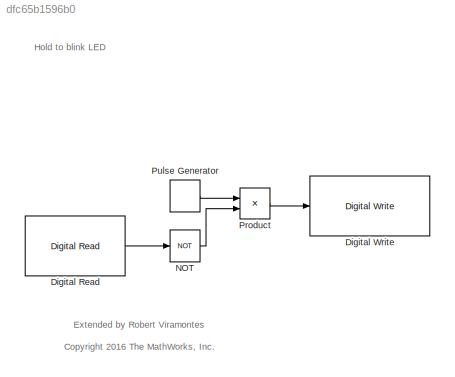
MODEL slx_dfc65b1596b0
KIND model
CONFIG AbsTol = auto
CONFIG EnableMultiTasking = on
CONFIG FixedStep = auto
CONFIG MaxStep = auto
CONFIG MinStep = auto
CONFIG RelTol = 1e-3
CONFIG SampleTimeConstraint = Unconstrained
CONFIG SolverName = FixedStepAuto
CONFIG StartTime = 0.0
CONFIG StopTime = 10.0
BLOCK [Reference] Digital Read  REF=mbedblockslib/Digital Read
  Ports = [0, 1]
  SourceBlock = mbedblockslib/Digital Read
  SourceProductBaseCode = MICROBIT,NUCLEO,STMICRODIS
  SourceType = mbed.DigitalRead
BLOCK [Reference] Digital Write  REF=mbedblockslib/Digital Write
  Ports = [1]
  SourceBlock = mbedblockslib/Digital Write
  SourceProductBaseCode = MICROBIT,NUCLEO,STMICRODIS
  SourceType = mbed.DigitalWrite
BLOCK [Logic] NOT
  AllPortsSameDT = off
  IconShape = distinctive
  Operator = NOT
  OutDataTypeStr = boolean
  Ports = [1, 1]
BLOCK [Product] Product
  Ports = [2, 1]
BLOCK [DiscretePulseGenerator] Pulse Generator
  Period = 10
  Ports = [0, 1]
  PulseWidth = 5
  SampleTime = 0.1
ANNOTATION (root): Extended by Robert Viramontes <copyright redacted>
ANNOTATION (root): Hold to blink LED
LINE Digital Read:1 -> NOT:1
LINE NOT:1 -> Product:2
LINE Product:1 -> Digital Write:1
LINE Pulse Generator:1 -> Product:1
